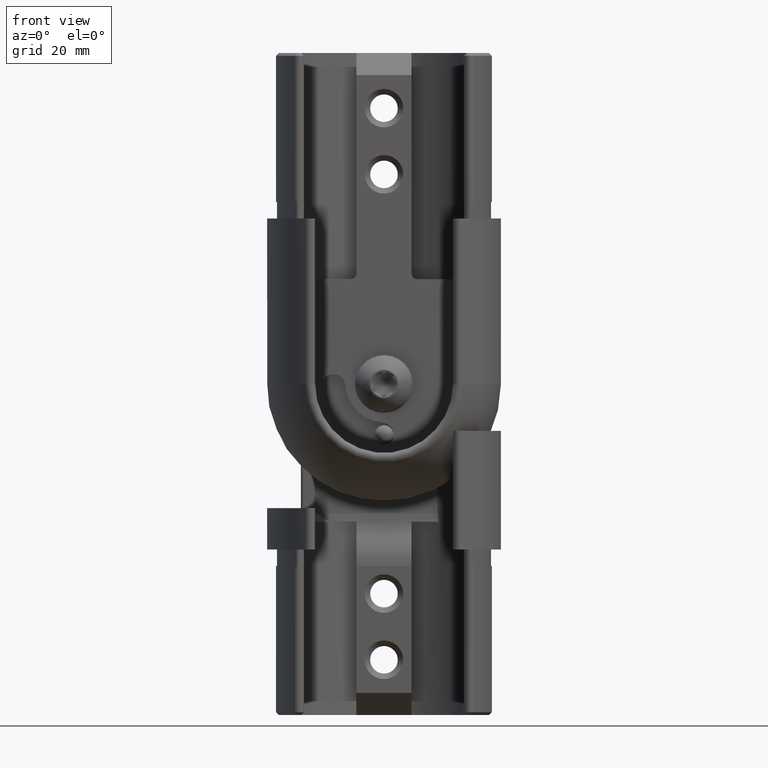
[diagram: clean part render]
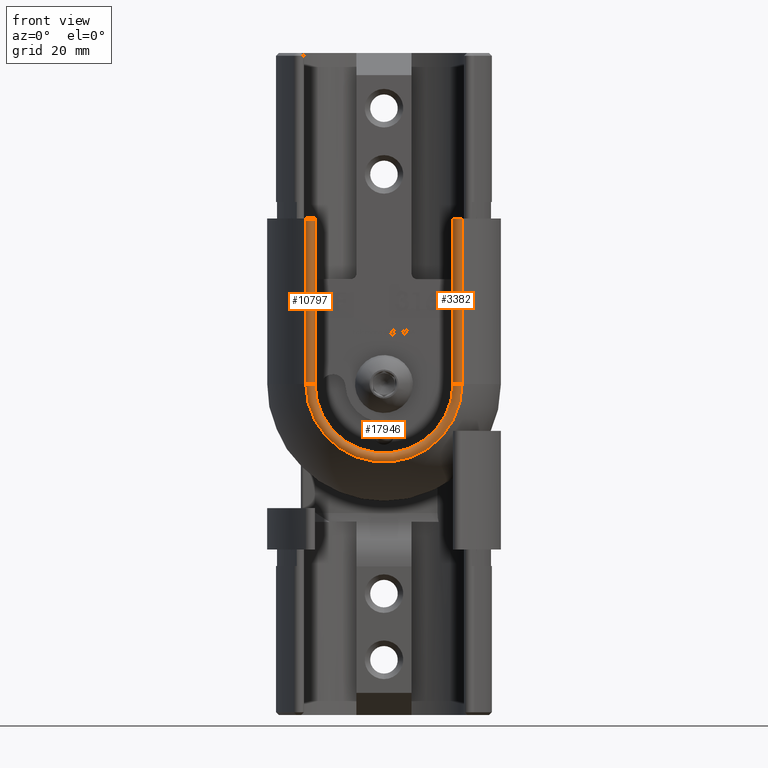
[diagram: same view with one multi-face feature highlighted, each face labeled with its STEP entity id]
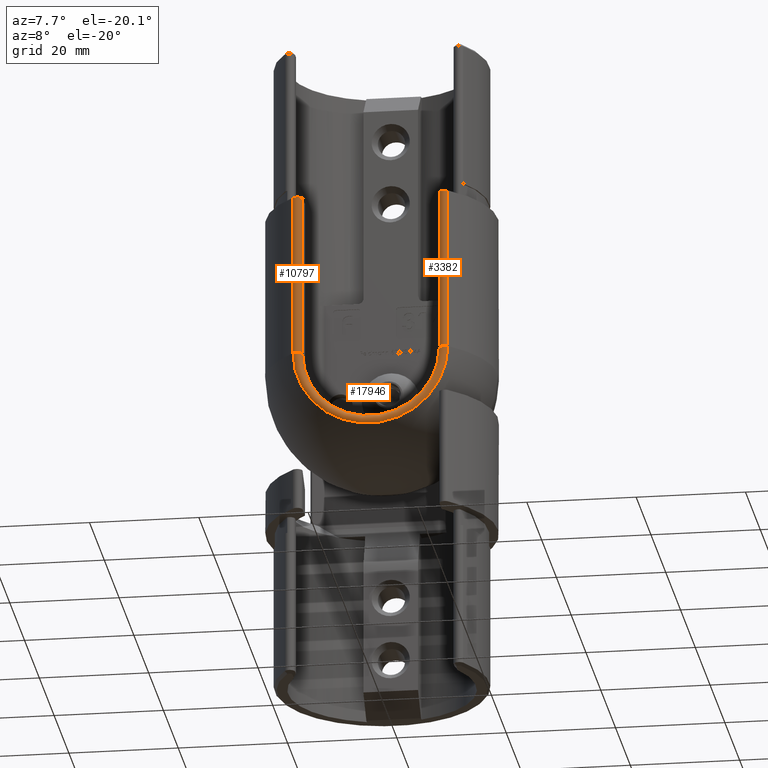
[diagram: same view with one multi-face feature highlighted, each face labeled with its STEP entity id]
A machine part, front view. The highlighted faces form ONE feature: a constant-radius fillet chain: 3 tangent blend faces with common blend radius 1 mm. The faces share edges in the B-rep.
A second angle (auxiliary view) of the same feature is appended — it is thin or edge-on in the first view.
Their STEP definitions:
[1] entity #17946 (Torus):
#420 = CARTESIAN_POINT ( 'NONE',  ( -5.204170427930421300E-015, -15.02631025900902600, -30.00000000000000000 ) ) ;
#1089 = TOROIDAL_SURFACE ( 'NONE', #22782, 13.50000000000000500, 0.9999999999999995600 ) ;
#2678 = DIRECTION ( 'NONE',  ( -1.000000000000000000, 0.0000000000000000000, 0.0000000000000000000 ) ) ;
#2972 = DIRECTION ( 'NONE',  ( -1.369518533665900300E-016, -1.000000000000000000, 0.0000000000000000000 ) ) ;
#3515 = CARTESIAN_POINT ( 'NONE',  ( -4.961260330604400400E-015, -15.02631025900902600, -30.00000000000000000 ) ) ;
#4398 = CARTESIAN_POINT ( 'NONE',  ( 13.50000000000000200, -15.02631025900903000, -30.00000000000000000 ) ) ;
#4758 = VERTEX_POINT ( 'NONE', #21556 ) ;
#5013 = AXIS2_PLACEMENT_3D ( 'NONE', #17923, #2972, #10386 ) ;
#5399 = DIRECTION ( 'NONE',  ( -1.369518533665900300E-016, -1.000000000000000000, 0.0000000000000000000 ) ) ;
#5943 = ORIENTED_EDGE ( 'NONE', *, *, #22684, .T. ) ;
#6075 = EDGE_CURVE ( 'NONE', #7462, #4758, #21458, .T. ) ;
#7261 = EDGE_CURVE ( 'NONE', #23026, #22591, #10972, .T. ) ;
#7462 = VERTEX_POINT ( 'NONE', #16833 ) ;
#7496 = EDGE_CURVE ( 'NONE', #22591, #7462, #16450, .T. ) ;
#7858 = CARTESIAN_POINT ( 'NONE',  ( -13.50000000000000200, -15.02631025900903000, -30.00000000000000000 ) ) ;
#10386 = DIRECTION ( 'NONE',  ( 1.000000000000000000, -2.448736143587105300E-016, 0.0000000000000000000 ) ) ;
#10741 = CIRCLE ( 'NONE', #5013, 14.16831683168317800 ) ;
#10972 = CIRCLE ( 'NONE', #13930, 0.9999999999999991100 ) ;
#11804 = DIRECTION ( 'NONE',  ( 0.0000000000000000000, 0.0000000000000000000, 1.000000000000000000 ) ) ;
#12109 = ORIENTED_EDGE ( 'NONE', *, *, #7261, .F. ) ;
#13454 = DIRECTION ( 'NONE',  ( 0.0000000000000000000, 0.0000000000000000000, 1.000000000000000000 ) ) ;
#13930 = AXIS2_PLACEMENT_3D ( 'NONE', #7858, #13454, #17255 ) ;
#15313 = DIRECTION ( 'NONE',  ( 1.000000000000000000, -1.369518533665900300E-016, 0.0000000000000000000 ) ) ;
#16082 = AXIS2_PLACEMENT_3D ( 'NONE', #4398, #11804, #2678 ) ;
#16450 = CIRCLE ( 'NONE', #22654, 12.50000000000000500 ) ;
#16833 = CARTESIAN_POINT ( 'NONE',  ( 12.50000000000000000, -15.02631025900903000, -30.00000000000000000 ) ) ;
#17081 = DIRECTION ( 'NONE',  ( -1.369518533665900300E-016, -1.000000000000000000, 0.0000000000000000000 ) ) ;
#17255 = DIRECTION ( 'NONE',  ( -1.000000000000000000, 0.0000000000000000000, 0.0000000000000000000 ) ) ;
#17923 = CARTESIAN_POINT ( 'NONE',  ( -5.063135629576315900E-015, -15.77018700450452300, -30.00000000000000000 ) ) ;
#17946 = ADVANCED_FACE ( 'NONE', ( #22070 ), #1089, .T. ) ;
#19218 = CARTESIAN_POINT ( 'NONE',  ( -12.50000000000000200, -15.02631025900903000, -30.00000000000000000 ) ) ;
#20760 = CARTESIAN_POINT ( 'NONE',  ( -14.16831683168318000, -15.77018700450451600, -30.00000000000000000 ) ) ;
#21427 = EDGE_LOOP ( 'NONE', ( #21558, #12109, #5943, #23222 ) ) ;
#21458 = CIRCLE ( 'NONE', #16082, 0.9999999999999991100 ) ;
#21556 = CARTESIAN_POINT ( 'NONE',  ( 14.16831683168317300, -15.77018700450452300, -30.00000000000000000 ) ) ;
#21558 = ORIENTED_EDGE ( 'NONE', *, *, #7496, .F. ) ;
#22070 = FACE_OUTER_BOUND ( 'NONE', #21427, .T. ) ;
#22152 = DIRECTION ( 'NONE',  ( 1.000000000000000000, -1.387778780781445200E-016, 0.0000000000000000000 ) ) ;
#22591 = VERTEX_POINT ( 'NONE', #19218 ) ;
#22654 = AXIS2_PLACEMENT_3D ( 'NONE', #3515, #5399, #22152 ) ;
#22684 = EDGE_CURVE ( 'NONE', #23026, #4758, #10741, .T. ) ;
#22782 = AXIS2_PLACEMENT_3D ( 'NONE', #420, #17081, #15313 ) ;
#23026 = VERTEX_POINT ( 'NONE', #20760 ) ;
#23222 = ORIENTED_EDGE ( 'NONE', *, *, #6075, .F. ) ;
[2] entity #10797 (Cylinder):
#663 = EDGE_CURVE ( 'NONE', #22591, #1171, #12688, .T. ) ;
#901 = EDGE_CURVE ( 'NONE', #12880, #1171, #22007, .T. ) ;
#1171 = VERTEX_POINT ( 'NONE', #6294 ) ;
#2005 = VECTOR ( 'NONE', #11414, 1000.000000000000000 ) ;
#2054 = CARTESIAN_POINT ( 'NONE',  ( -14.16831683168318000, -15.77018700450451600, -30.00000000000000000 ) ) ;
#2399 = FACE_OUTER_BOUND ( 'NONE', #11892, .T. ) ;
#2669 = CARTESIAN_POINT ( 'NONE',  ( -14.16831683168318000, -15.77018700450451600, 0.0000000000000000000 ) ) ;
#3266 = CYLINDRICAL_SURFACE ( 'NONE', #18142, 0.9999999999999991100 ) ;
#3541 = DIRECTION ( 'NONE',  ( 0.0000000000000000000, 0.0000000000000000000, 1.000000000000000000 ) ) ;
#6026 = DIRECTION ( 'NONE',  ( 0.0000000000000000000, 0.0000000000000000000, 1.000000000000000000 ) ) ;
#6294 = CARTESIAN_POINT ( 'NONE',  ( -12.50000000000000200, -15.02631025900903000, 0.0000000000000000000 ) ) ;
#7261 = EDGE_CURVE ( 'NONE', #23026, #22591, #10972, .T. ) ;
#7743 = VECTOR ( 'NONE', #6026, 1000.000000000000000 ) ;
#7858 = CARTESIAN_POINT ( 'NONE',  ( -13.50000000000000200, -15.02631025900903000, -30.00000000000000000 ) ) ;
#8947 = CARTESIAN_POINT ( 'NONE',  ( -13.50000000000000200, -15.02631025900903000, 0.0000000000000000000 ) ) ;
#9083 = CARTESIAN_POINT ( 'NONE',  ( -13.50000000000000200, -15.02631025900903000, -30.00000000000000000 ) ) ;
#10797 = ADVANCED_FACE ( 'NONE', ( #2399 ), #3266, .T. ) ;
#10959 = DIRECTION ( 'NONE',  ( 1.000000000000000000, 0.0000000000000000000, 0.0000000000000000000 ) ) ;
#10972 = CIRCLE ( 'NONE', #13930, 0.9999999999999991100 ) ;
#11321 = ORIENTED_EDGE ( 'NONE', *, *, #663, .T. ) ;
#11414 = DIRECTION ( 'NONE',  ( 0.0000000000000000000, 0.0000000000000000000, 1.000000000000000000 ) ) ;
#11589 = LINE ( 'NONE', #2054, #2005 ) ;
#11892 = EDGE_LOOP ( 'NONE', ( #21761, #17035, #20807, #11321 ) ) ;
#12688 = LINE ( 'NONE', #17147, #7743 ) ;
#12880 = VERTEX_POINT ( 'NONE', #2669 ) ;
#13454 = DIRECTION ( 'NONE',  ( 0.0000000000000000000, 0.0000000000000000000, 1.000000000000000000 ) ) ;
#13930 = AXIS2_PLACEMENT_3D ( 'NONE', #7858, #13454, #17255 ) ;
#14551 = DIRECTION ( 'NONE',  ( 0.0000000000000000000, 0.0000000000000000000, 1.000000000000000000 ) ) ;
#16510 = AXIS2_PLACEMENT_3D ( 'NONE', #8947, #14551, #24065 ) ;
#17035 = ORIENTED_EDGE ( 'NONE', *, *, #21951, .F. ) ;
#17147 = CARTESIAN_POINT ( 'NONE',  ( -12.50000000000000200, -15.02631025900903000, -30.00000000000000000 ) ) ;
#17255 = DIRECTION ( 'NONE',  ( -1.000000000000000000, 0.0000000000000000000, 0.0000000000000000000 ) ) ;
#18142 = AXIS2_PLACEMENT_3D ( 'NONE', #9083, #3541, #10959 ) ;
#19218 = CARTESIAN_POINT ( 'NONE',  ( -12.50000000000000200, -15.02631025900903000, -30.00000000000000000 ) ) ;
#20760 = CARTESIAN_POINT ( 'NONE',  ( -14.16831683168318000, -15.77018700450451600, -30.00000000000000000 ) ) ;
#20807 = ORIENTED_EDGE ( 'NONE', *, *, #7261, .T. ) ;
#21761 = ORIENTED_EDGE ( 'NONE', *, *, #901, .F. ) ;
#21951 = EDGE_CURVE ( 'NONE', #23026, #12880, #11589, .T. ) ;
#22007 = CIRCLE ( 'NONE', #16510, 0.9999999999999991100 ) ;
#22591 = VERTEX_POINT ( 'NONE', #19218 ) ;
#23026 = VERTEX_POINT ( 'NONE', #20760 ) ;
#24065 = DIRECTION ( 'NONE',  ( -1.000000000000000000, 0.0000000000000000000, 0.0000000000000000000 ) ) ;
[3] entity #3382 (Cylinder):
#147 = DIRECTION ( 'NONE',  ( -1.000000000000000000, 0.0000000000000000000, 0.0000000000000000000 ) ) ;
#1380 = CARTESIAN_POINT ( 'NONE',  ( 12.50000000000000000, -15.02631025900903000, -30.00000000000000000 ) ) ;
#2678 = DIRECTION ( 'NONE',  ( -1.000000000000000000, 0.0000000000000000000, 0.0000000000000000000 ) ) ;
#2874 = AXIS2_PLACEMENT_3D ( 'NONE', #20479, #7645, #147 ) ;
#3382 = ADVANCED_FACE ( 'NONE', ( #17815 ), #16075, .T. ) ;
#4368 = CIRCLE ( 'NONE', #2874, 0.9999999999999991100 ) ;
#4398 = CARTESIAN_POINT ( 'NONE',  ( 13.50000000000000200, -15.02631025900903000, -30.00000000000000000 ) ) ;
#4758 = VERTEX_POINT ( 'NONE', #21556 ) ;
#4940 = VERTEX_POINT ( 'NONE', #13506 ) ;
#5723 = CARTESIAN_POINT ( 'NONE',  ( 14.16831683168317300, -15.77018700450452300, 0.0000000000000000000 ) ) ;
#6075 = EDGE_CURVE ( 'NONE', #7462, #4758, #21458, .T. ) ;
#6155 = DIRECTION ( 'NONE',  ( 0.0000000000000000000, 0.0000000000000000000, 1.000000000000000000 ) ) ;
#7462 = VERTEX_POINT ( 'NONE', #16833 ) ;
#7645 = DIRECTION ( 'NONE',  ( 0.0000000000000000000, 0.0000000000000000000, 1.000000000000000000 ) ) ;
#7827 = VERTEX_POINT ( 'NONE', #5723 ) ;
#9350 = CARTESIAN_POINT ( 'NONE',  ( 14.16831683168317300, -15.77018700450452300, -30.00000000000000000 ) ) ;
#11223 = DIRECTION ( 'NONE',  ( 0.0000000000000000000, 0.0000000000000000000, 1.000000000000000000 ) ) ;
#11804 = DIRECTION ( 'NONE',  ( 0.0000000000000000000, 0.0000000000000000000, 1.000000000000000000 ) ) ;
#11945 = VECTOR ( 'NONE', #11223, 1000.000000000000000 ) ;
#12703 = ORIENTED_EDGE ( 'NONE', *, *, #14133, .T. ) ;
#13506 = CARTESIAN_POINT ( 'NONE',  ( 12.50000000000000000, -15.02631025900903000, 0.0000000000000000000 ) ) ;
#14133 = EDGE_CURVE ( 'NONE', #4758, #7827, #19184, .T. ) ;
#14395 = DIRECTION ( 'NONE',  ( 0.0000000000000000000, 0.0000000000000000000, 1.000000000000000000 ) ) ;
#16075 = CYLINDRICAL_SURFACE ( 'NONE', #17592, 0.9999999999999991100 ) ;
#16082 = AXIS2_PLACEMENT_3D ( 'NONE', #4398, #11804, #2678 ) ;
#16264 = ORIENTED_EDGE ( 'NONE', *, *, #19664, .F. ) ;
#16833 = CARTESIAN_POINT ( 'NONE',  ( 12.50000000000000000, -15.02631025900903000, -30.00000000000000000 ) ) ;
#17007 = ORIENTED_EDGE ( 'NONE', *, *, #6075, .T. ) ;
#17511 = DIRECTION ( 'NONE',  ( 1.000000000000000000, 0.0000000000000000000, 0.0000000000000000000 ) ) ;
#17592 = AXIS2_PLACEMENT_3D ( 'NONE', #20787, #6155, #17511 ) ;
#17815 = FACE_OUTER_BOUND ( 'NONE', #19733, .T. ) ;
#19184 = LINE ( 'NONE', #9350, #11945 ) ;
#19664 = EDGE_CURVE ( 'NONE', #7462, #4940, #23604, .T. ) ;
#19733 = EDGE_LOOP ( 'NONE', ( #23717, #16264, #17007, #12703 ) ) ;
#20403 = EDGE_CURVE ( 'NONE', #4940, #7827, #4368, .T. ) ;
#20479 = CARTESIAN_POINT ( 'NONE',  ( 13.50000000000000200, -15.02631025900903000, 0.0000000000000000000 ) ) ;
#20787 = CARTESIAN_POINT ( 'NONE',  ( 13.50000000000000200, -15.02631025900903000, -30.00000000000000000 ) ) ;
#21458 = CIRCLE ( 'NONE', #16082, 0.9999999999999991100 ) ;
#21548 = VECTOR ( 'NONE', #14395, 1000.000000000000000 ) ;
#21556 = CARTESIAN_POINT ( 'NONE',  ( 14.16831683168317300, -15.77018700450452300, -30.00000000000000000 ) ) ;
#23604 = LINE ( 'NONE', #1380, #21548 ) ;
#23717 = ORIENTED_EDGE ( 'NONE', *, *, #20403, .F. ) ;